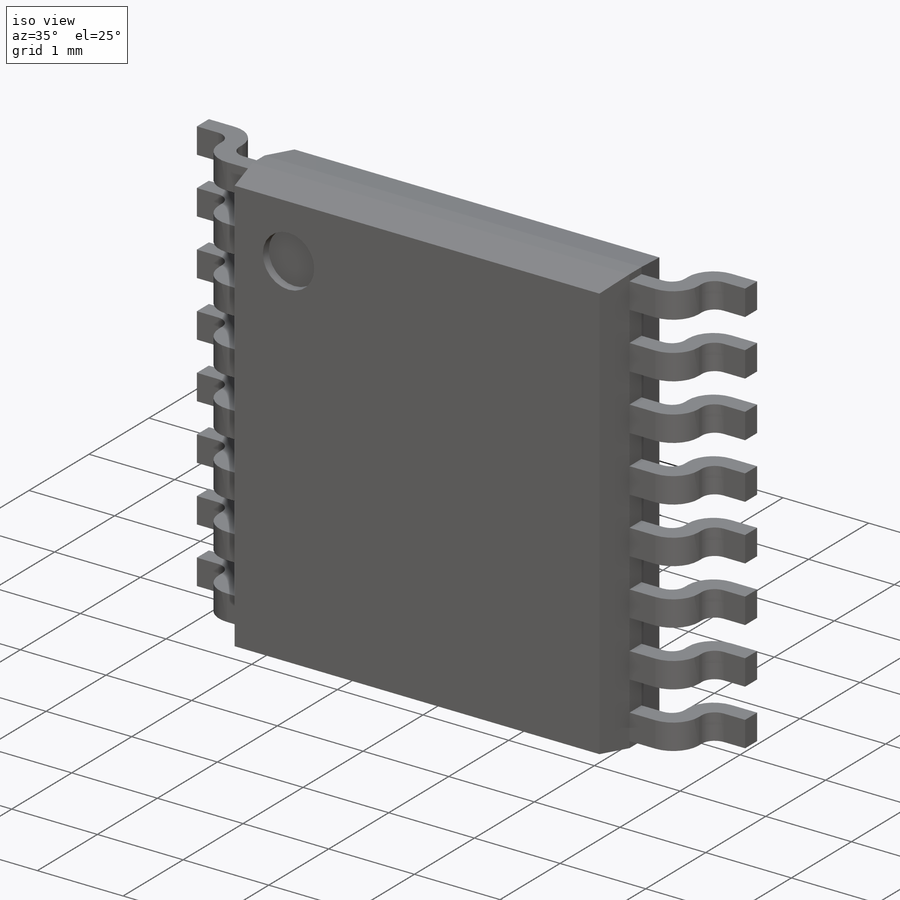
[diagram: iso view]
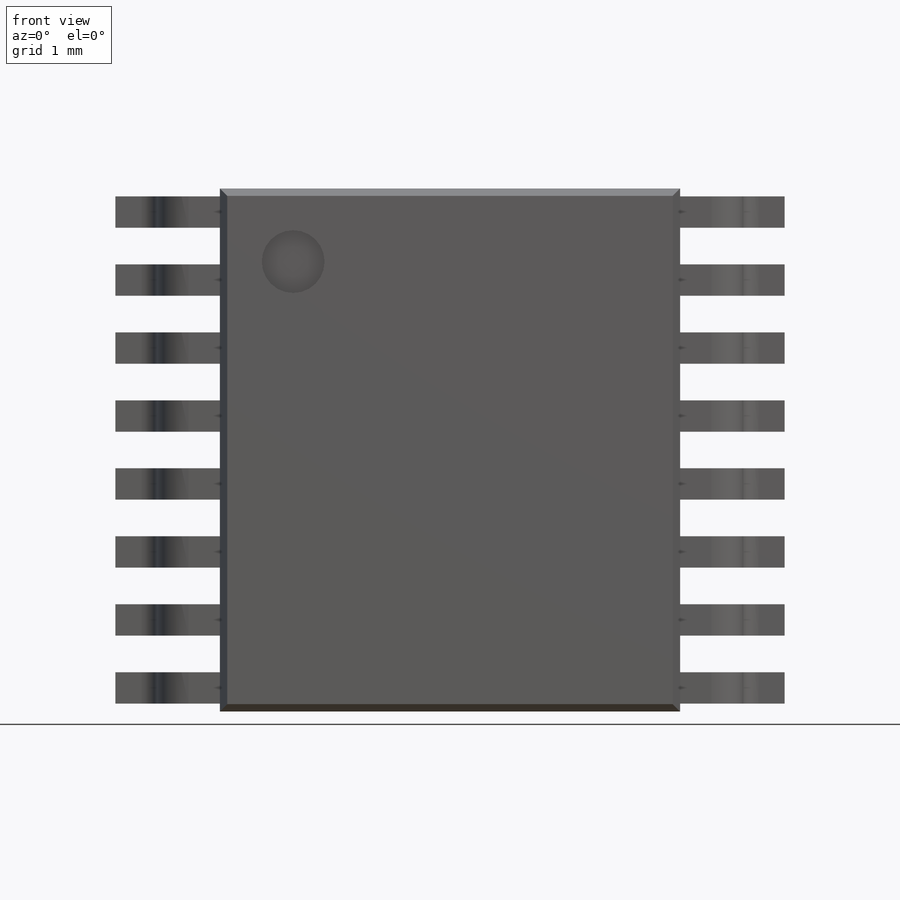
[diagram: front view]
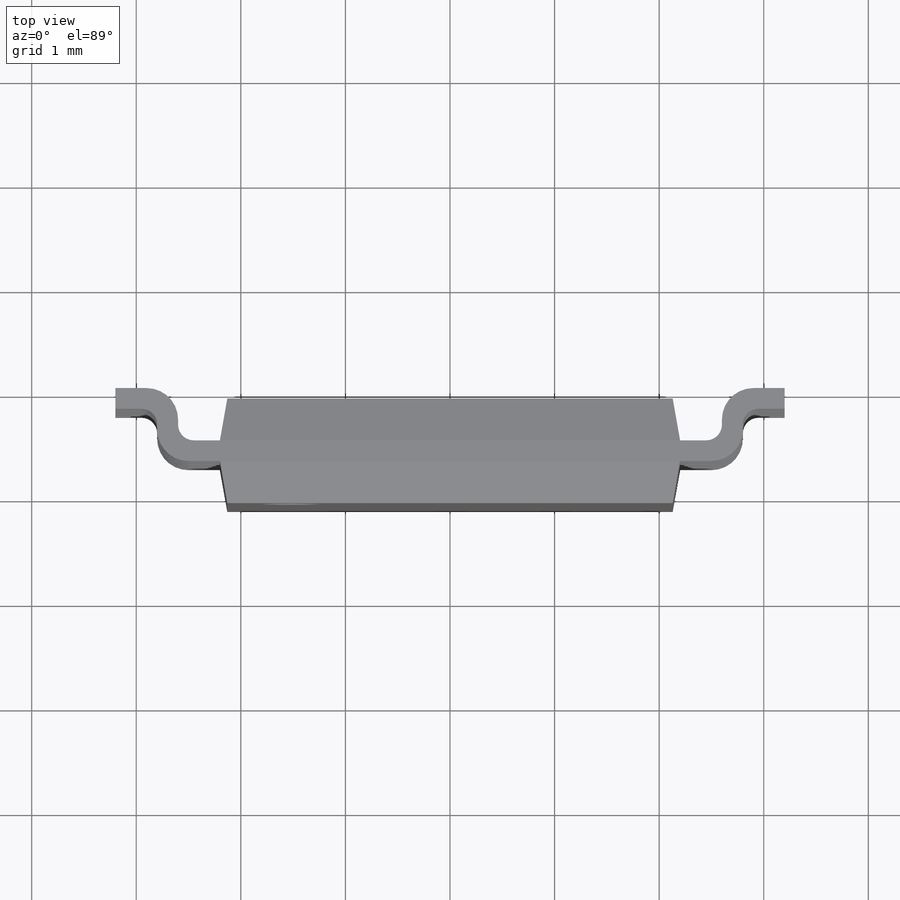
[diagram: top view]
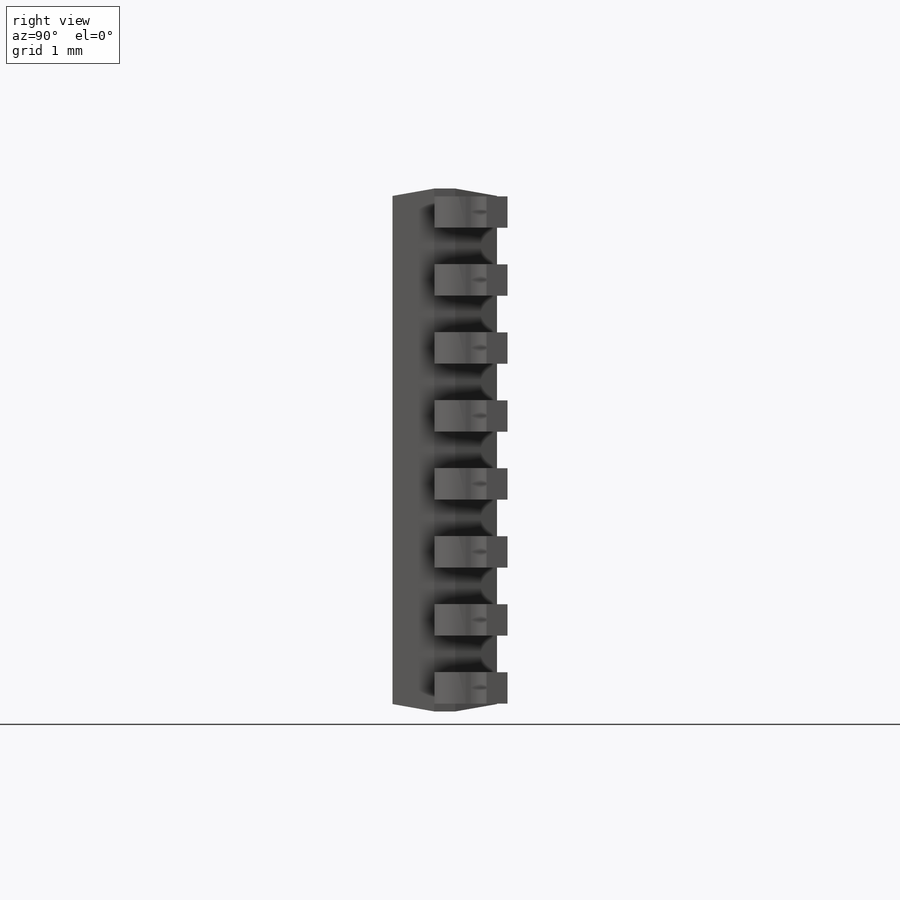
[diagram: right view]
SOLIDWORKS PART (.sldprt)
format: sldprt  version: not decoded by parser v0  size: 621,056 bytes
history: native  units: mm
features: plane x5, chamfer x3, extrude x2, material x1, sketch x1, pattern_linear x1, cut_extrude x1 (+13 scaffold rows collapsed)
feature tree (27):
  scaffold x13  (default folders/planes/origin — collapsed)
  material  "Material <not specified>"
  plane  "Спереди"
  plane  "Сверху"
  plane  "Справа"
  plane  "Плоскость1"  Offset=0.1mm
  sketch  "Эскиз1"  dims[D1=5.0mm]
  extrude  "Бобышка-Вытянуть1"  Depth=1mm
  plane  "Плоскость2"  Offset=2.275mm
  chamfer  "Фаска1"  Distance=0.4mm Angle=10deg
  chamfer  "Эскиз3"  Distance=0.3mm
  extrude  "Бобышка-Вытянуть2"  Depth=0.15mm
  pattern_linear  "Линейный массив1"  Count1=8 Count2=1 Spacing1=0.65mm Spacing2=10mm
  chamfer  "Эскиз4"  Distance=0.287937mm
  cut_extrude  "Вырез-Вытянуть1"  Depth=0.1mm
decode coverage: 8 of 8 modeling features carry decoded parameters
note: suppression state not decoded; provenance and decode notes live in map.json
